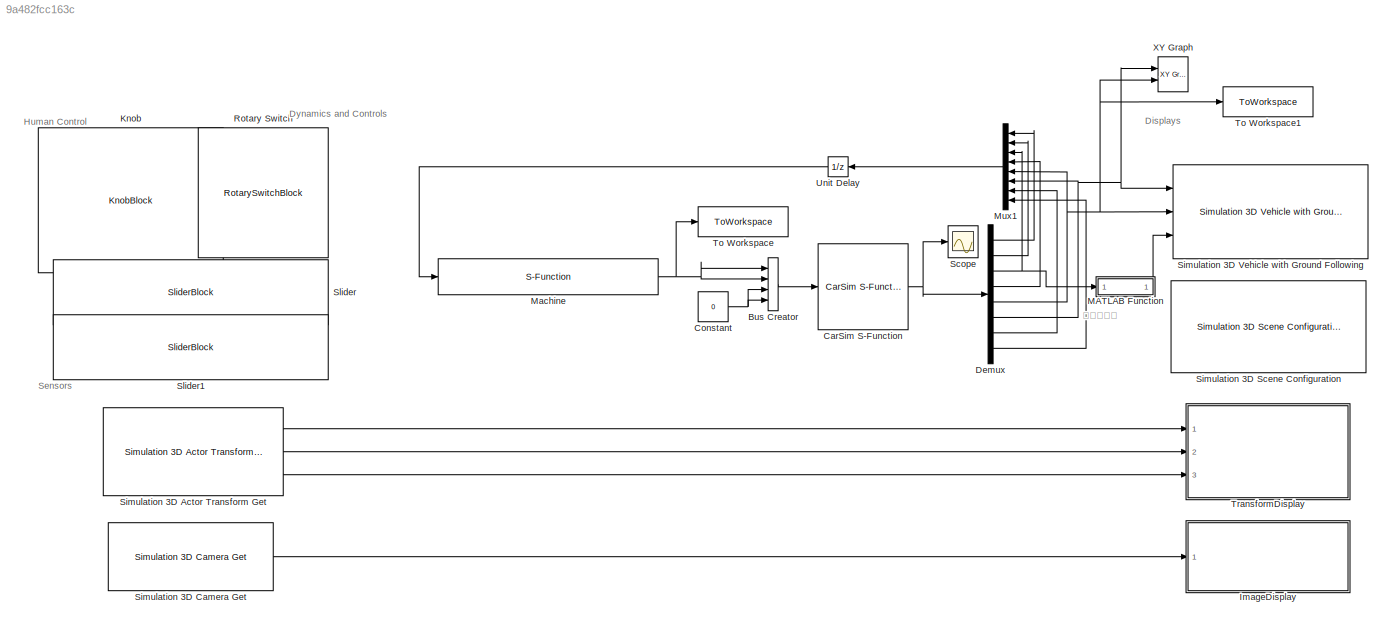
MODEL slx_9a482fcc163c
KIND model
CONFIG AbsTol = auto
CONFIG EnableMultiTasking = off
CONFIG FixedStep = auto
CONFIG MaxStep = auto
CONFIG MinStep = auto
CONFIG RelTol = 2e-1
CONFIG SampleTimeConstraint = Unconstrained
CONFIG SolverName = ode23tb
CONFIG StartTime = 0.0
CONFIG StopTime = 20
WORKSPACE source: mxarray member
WORKSPACE EngPwr = 352122.842504
WORKSPACE EngWc = 4.047
WORKSPACE Tdiff = 849
WORKSPACE Tlim = 1000
WORKSPACE VEH: object (value not decoded)
BLOCK [BusCreator] Bus Creator
  DisplayOption = bar
  InheritFromInputs = on
  Inputs = 4
  Ports = [4, 1]
BLOCK [Reference] CarSim S-Function  REF=Solver_SF/CarSim S-Function
  Ports = [1, 1]
  Priority = 1
  SourceBlock = Solver_SF/CarSim S-Function
  SourceProductName = CarSim S-Function
  SourceType = Vehicle math model library
BLOCK [Constant] Constant
  Value = 0
BLOCK [Demux] Demux
  Outputs = 8
  Ports = [1, 8]
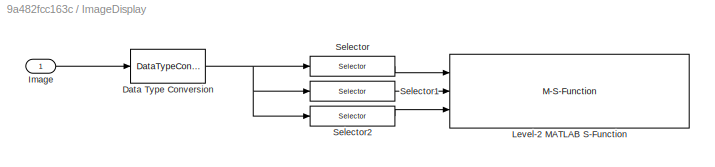
BLOCK [SubSystem] ImageDisplay
  Ports = [1]
  RequestExecContextInheritance = off
BLOCK [DataTypeConversion] ImageDisplay/Data Type Conversion
  RndMeth = Floor
  SaturateOnIntegerOverflow = off
BLOCK [Inport] ImageDisplay/Image
BLOCK [M-S-Function] ImageDisplay/Level-2 MATLAB S-Function
  FunctionName = VideoDisplayMSfcnWin
  Parameters = 1
  Ports = [3]
BLOCK [Selector] ImageDisplay/Selector
  IndexOptions = Select all,Select all,Index vector (dialog)
  Indices = [1 3],1,1
  InputPortWidth = 3
  NumberOfDimensions = 3
  OutputSizes = 1,1,1
  Ports = [1, 1]
BLOCK [Selector] ImageDisplay/Selector1
  IndexOptions = Select all,Select all,Index vector (dialog)
  Indices = [1 3],1,2
  InputPortWidth = 3
  NumberOfDimensions = 3
  OutputSizes = 1,1,1
  Ports = [1, 1]
BLOCK [Selector] ImageDisplay/Selector2
  IndexOptions = Select all,Select all,Index vector (dialog)
  Indices = [1 3],1,3
  InputPortWidth = 3
  NumberOfDimensions = 3
  OutputSizes = 1,1,1
  Ports = [1, 1]
BLOCK [KnobBlock] Knob
  LabelPosition = Bottom
  ScaleMax = 90
  ScaleMin = -90
  TickInterval = 30
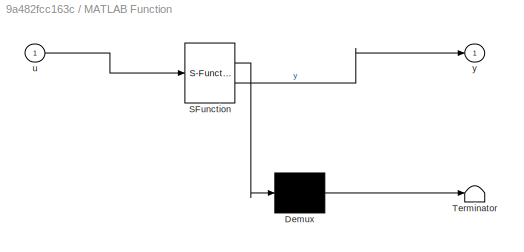
BLOCK [SubSystem] MATLAB Function
  ErrorFcn = Stateflow.Translate.translate
  PermitHierarchicalResolution = ExplicitOnly
  Ports = [1, 1]
  RequestExecContextInheritance = off
  SFBlockType = MATLAB Function
  TreatAsAtomicUnit = on
BLOCK [Demux] MATLAB Function/ Demux 
  Outputs = 1
  Ports = [1, 1]
BLOCK [S-Function] MATLAB Function/ SFunction 
  EnableBusSupport = on
  FunctionName = sf_sfun
  PortCounts = [1 2]
  Ports = [1, 2]
  SFcnIsStateOwnerBlock = off
  SFunctionDeploymentMode = off
  Tag = Stateflow S-Function 2
BLOCK [Terminator] MATLAB Function/ Terminator 
BLOCK [Inport] MATLAB Function/u
BLOCK [Outport] MATLAB Function/y
BLOCK [S-Function] Machine
  EnableBusSupport = off
  FunctionName = Probability_Path_MPC_Controller_dynamic
  Ports = [1, 1]
  SFcnIsStateOwnerBlock = off
  SFunctionDeploymentMode = off
BLOCK [Mux] Mux1
  DisplayOption = bar
  Inputs = 8
  Ports = [8, 1]
BLOCK [RotarySwitchBlock] Rotary Switch
  LabelPosition = Bottom
BLOCK [Scope] Scope
  Floating = off
  NumInputPorts = 1
  Ports = [1]
  ScopeSpecificationString = Simulink.scopes.TimeScopeBlockCfg('CurrentConfiguration', extmgr.ConfigurationSet(extmgr.Configuration('Core','General UI',true),extmgr.Configuration('Core','Source UI',true),extmgr.Configuration('Sources','WiredSimulink',true),extmgr.Configuration('Visuals','Time Domain',true,'SerializedDisplays',{struct('MinYLimReal','-16.801','MaxYLimReal','31.97817','YLabelReal','','MinYLimMag','0.00000','MaxY...<+1741ch>
BLOCK [Reference] Simulation 3D Actor Transform Get  REF=sim3dlib/Simulation 3D Actor Transform Get
  Ports = [0, 3]
  Priority = 1
  SourceBlock = sim3dlib/Simulation 3D Actor Transform Get
  SourceProductBaseCode = DR,UV,VE
  SourceType = Simulation 3D Actor Transform Get
BLOCK [Reference] Simulation 3D Camera Get  REF=sim3dlib/Simulation 3D Camera Get
  Ports = [0, 1]
  Priority = 1
  SourceBlock = sim3dlib/Simulation 3D Camera Get
  SourceProductBaseCode = DR,UV,VE
  SourceType = Simulation 3D Camera Get
BLOCK [Reference] Simulation 3D Scene Configuration  REF=sim3dlib/Simulation 3D Scene Configuration
  Ports = []
  Priority = 0
  SourceBlock = sim3dlib/Simulation 3D Scene Configuration
  SourceProductBaseCode = DR,UV,VE
  SourceType = Simulation 3D Scene Configuration
BLOCK [Reference] Simulation 3D Vehicle with Ground Following  REF=vdynlib/Vehicle Scenarios/Sim3D/Sim3D Vehicle/Components/Simulation 3D Vehicle with Ground Following
  Ports = [3]
  Priority = -1
  SourceBlock = vdynlib/Vehicle Scenarios/Sim3D/Sim3D Vehicle/Components/Simulation 3D Vehicle with Ground Following
  SourceProductBaseCode = VE
  SourceType = Simulation 3D Vehicle with Ground Following
BLOCK [SliderBlock] Slider
  LabelPosition = Bottom
  ScaleMax = 1
  TickInterval = .2
BLOCK [SliderBlock] Slider1
  LabelPosition = Bottom
  ScaleMax = 1
  TickInterval = .2
BLOCK [ToWorkspace] To Workspace
  FixptAsFi = on
  MaxDataPoints = inf
  Ports = [1]
  SampleTime = -1
  SaveFormat = Timeseries
  VariableName = simout
BLOCK [ToWorkspace] To Workspace1
  FixptAsFi = on
  MaxDataPoints = inf
  Ports = [1]
  SampleTime = -1
  SaveFormat = Timeseries
  VariableName = simout1
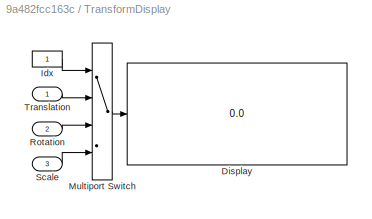
BLOCK [SubSystem] TransformDisplay
  Ports = [3]
  RequestExecContextInheritance = off
BLOCK [MultiPortSwitch] TransformDisplay/ Multiport Switch
  InputSameDT = off
  Ports = [4, 1]
  SaturateOnIntegerOverflow = off
BLOCK [Display] TransformDisplay/Display
  Decimation = 1
  Ports = [1]
BLOCK [Constant] TransformDisplay/Idx
BLOCK [Inport] TransformDisplay/Rotation
  Port = 2
BLOCK [Inport] TransformDisplay/Scale
  Port = 3
BLOCK [Inport] TransformDisplay/Translation
BLOCK [UnitDelay] Unit Delay
  HasFrameUpgradeWarning = on
  SampleTime = -1
BLOCK [Reference] XY Graph  REF=simulink/Sinks/XY Graph
  Ports = [2]
  SourceBlock = simulink/Sinks/XY Graph
  SourceProductBaseCode = SL
  SourceType = XY scope.
ANNOTATION (root): Displays
ANNOTATION (root): Dynamics and Controls
ANNOTATION (root): Human Control
ANNOTATION (root): Sensors
ANNOTATION (root): 转换为弧度
LINE Bus Creator:1 -> CarSim S-Function:1
NET CarSim S-Function:1 -> Demux:1, Scope:1
NET Constant:1 -> Bus Creator:3, Bus Creator:4
LINE Demux:1 -> Mux1:1
LINE Demux:2 -> Mux1:2
NET Demux:3 -> MATLAB Function:1, Mux1:3
LINE Demux:4 -> Mux1:4
NET Demux:5 -> Mux1:5, Simulation 3D Vehicle with Ground Following:2, To Workspace1:1, XY Graph:2
NET Demux:6 -> Mux1:6, Simulation 3D Vehicle with Ground Following:1, XY Graph:1
LINE Demux:7 -> Mux1:7
LINE Demux:8 -> Mux1:8
NET ImageDisplay/Data Type Conversion:1 -> ImageDisplay/Selector1:1, ImageDisplay/Selector2:1, ImageDisplay/Selector:1
LINE ImageDisplay/Image:1 -> ImageDisplay/Data Type Conversion:1
LINE ImageDisplay/Selector1:1 -> ImageDisplay/Level-2 MATLAB S-Function:2
LINE ImageDisplay/Selector2:1 -> ImageDisplay/Level-2 MATLAB S-Function:3
LINE ImageDisplay/Selector:1 -> ImageDisplay/Level-2 MATLAB S-Function:1
LINE MATLAB Function:1 -> Simulation 3D Vehicle with Ground Following:3
NET Machine:1 -> Bus Creator:1, Bus Creator:2, To Workspace:1
LINE Mux1:1 -> Unit Delay:1
LINE Simulation 3D Actor Transform Get:1 -> TransformDisplay:1
LINE Simulation 3D Actor Transform Get:2 -> TransformDisplay:2
LINE Simulation 3D Actor Transform Get:3 -> TransformDisplay:3
LINE Simulation 3D Camera Get:1 -> ImageDisplay:1
LINE TransformDisplay/ Multiport Switch:1 -> TransformDisplay/Display:1
LINE TransformDisplay/Idx:1 -> TransformDisplay/ Multiport Switch:1
LINE TransformDisplay/Rotation:1 -> TransformDisplay/ Multiport Switch:3
LINE TransformDisplay/Scale:1 -> TransformDisplay/ Multiport Switch:4
LINE TransformDisplay/Translation:1 -> TransformDisplay/ Multiport Switch:2
LINE Unit Delay:1 -> Machine:1
note: NET lines group one-source signal fan-out (src -> all destinations, sorted); 1:1 wires keep LINE
CHART MATLAB Function states=1 transitions=1
  STATE_LABEL 'eML_blk_kernel()'
  STATE_LABEL 'SCRIPT:\nfunction y = fcn(u)\n\ny = u/180*pi;\n'
CHART  states=0 transitions=0
